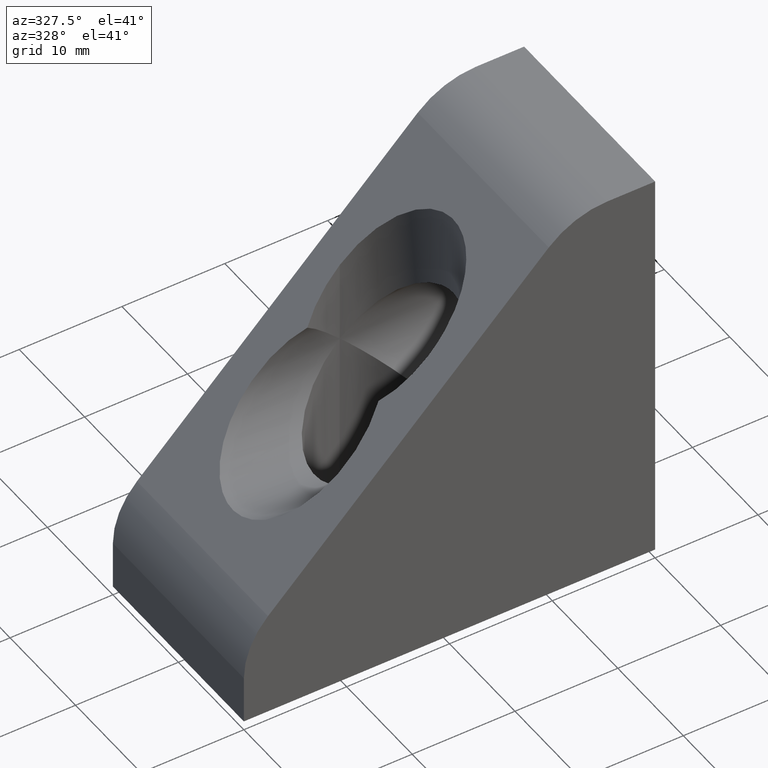
[diagram: clean part render]
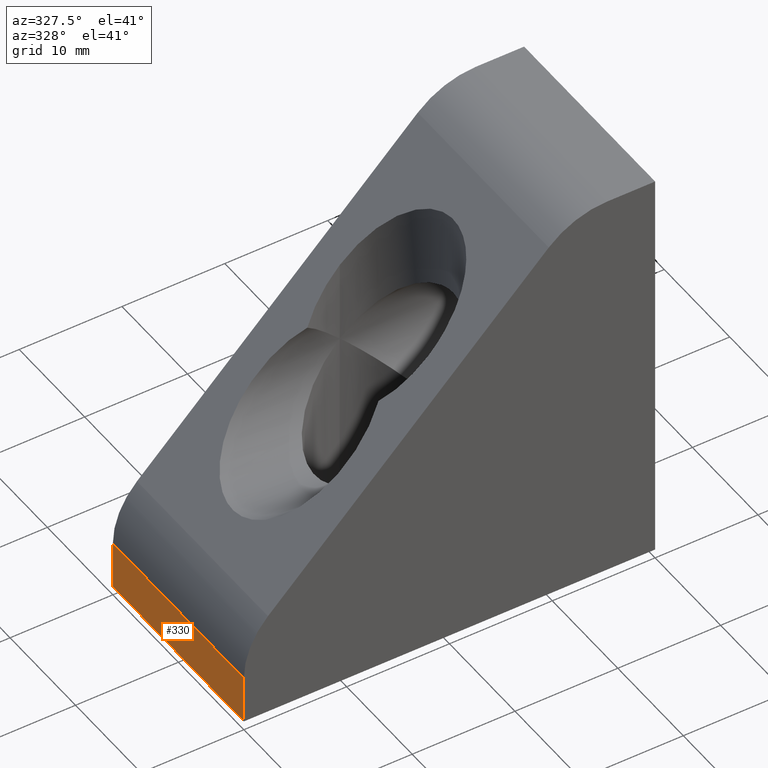
[diagram: same view with one face highlighted and labeled with its STEP entity id]
A machine part, auxiliary view. The second image highlights one B-rep face of the part: STEP entity #330.
In plain terms, the highlighted planar face has unit normal (1, 0, 0).
Its self-contained STEP definition (entity closure, byte-faithful):
#291=CARTESIAN_POINT('',(-40.000000000000014,-10.999999999999996,4.920606076066001));
#292=DIRECTION('',(1.0,0.0,0.0));
#293=DIRECTION('',(0.0,0.0,-1.0));
#294=AXIS2_PLACEMENT_3D('',#291,#292,#293);
#295=PLANE('',#294);
#296=CARTESIAN_POINT('',(-40.000000000000014,-10.0,4.686291501015233));
#297=VERTEX_POINT('',#296);
#298=CARTESIAN_POINT('',(-40.000000000000014,-10.0,0.0));
#299=VERTEX_POINT('',#298);
#300=CARTESIAN_POINT('',(-40.000000000000014,-10.0,4.686291501015241));
#301=DIRECTION('',(0.0,0.0,-1.0));
#302=VECTOR('',#301,4.686291501015241);
#303=LINE('',#300,#302);
#304=EDGE_CURVE('',#297,#299,#303,.T.);
#305=ORIENTED_EDGE('',*,*,#304,.F.);
#306=CARTESIAN_POINT('',(-40.000000000000014,10.000000000000002,4.686291501015233));
#307=VERTEX_POINT('',#306);
#308=CARTESIAN_POINT('',(-40.000000000000014,-9.999999999999996,4.686291501015233));
#309=DIRECTION('',(0.0,1.0,0.0));
#310=VECTOR('',#309,20.0);
#311=LINE('',#308,#310);
#312=EDGE_CURVE('',#297,#307,#311,.T.);
#313=ORIENTED_EDGE('',*,*,#312,.T.);
#314=CARTESIAN_POINT('',(-40.000000000000014,10.000000000000002,0.0));
#315=VERTEX_POINT('',#314);
#316=CARTESIAN_POINT('',(-40.000000000000014,10.000000000000002,4.686291501015241));
#317=DIRECTION('',(0.0,0.0,-1.0));
#318=VECTOR('',#317,4.686291501015241);
#319=LINE('',#316,#318);
#320=EDGE_CURVE('',#307,#315,#319,.T.);
#321=ORIENTED_EDGE('',*,*,#320,.T.);
#322=CARTESIAN_POINT('',(-40.000000000000014,10.000000000000002,0.0));
#323=DIRECTION('',(0.0,-1.0,0.0));
#324=VECTOR('',#323,20.0);
#325=LINE('',#322,#324);
#326=EDGE_CURVE('',#315,#299,#325,.T.);
#327=ORIENTED_EDGE('',*,*,#326,.T.);
#328=EDGE_LOOP('',(#305,#313,#321,#327));
#329=FACE_OUTER_BOUND('',#328,.T.);
#330=ADVANCED_FACE('',(#329),#295,.F.);